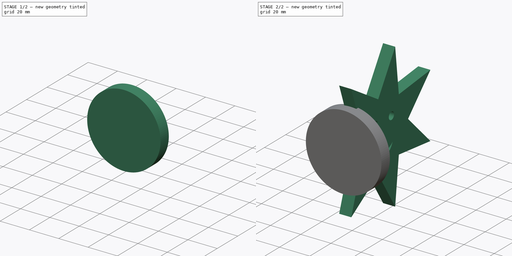
[diagram: build sequence overview — one tinted view per stage of 2, left to right]
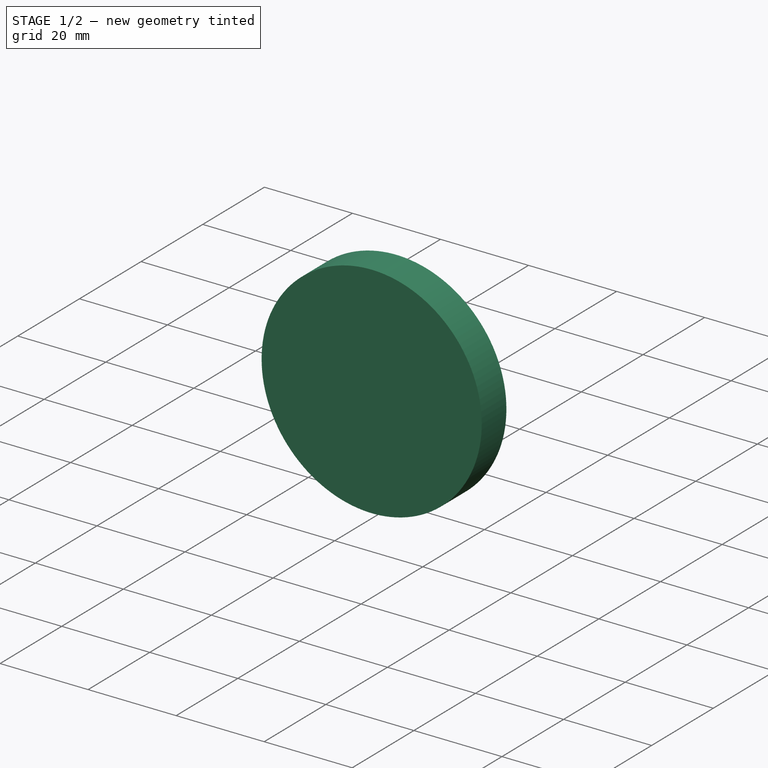
[diagram: stage 1 of 2 — iso view after this stage's code; geometry added in this stage tinted green]
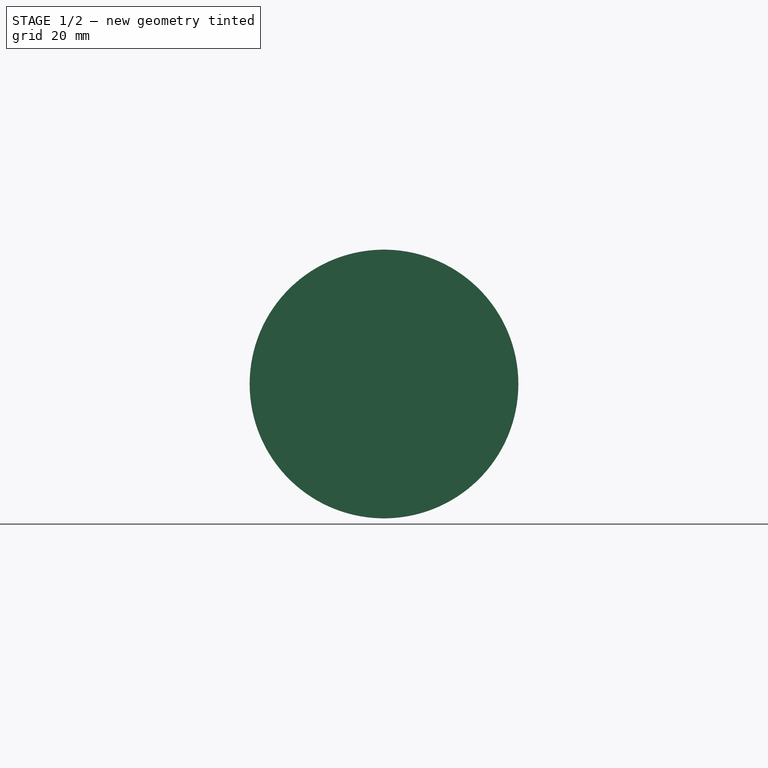
[diagram: stage 1 of 2 — front view after this stage's code; geometry added in this stage tinted green]
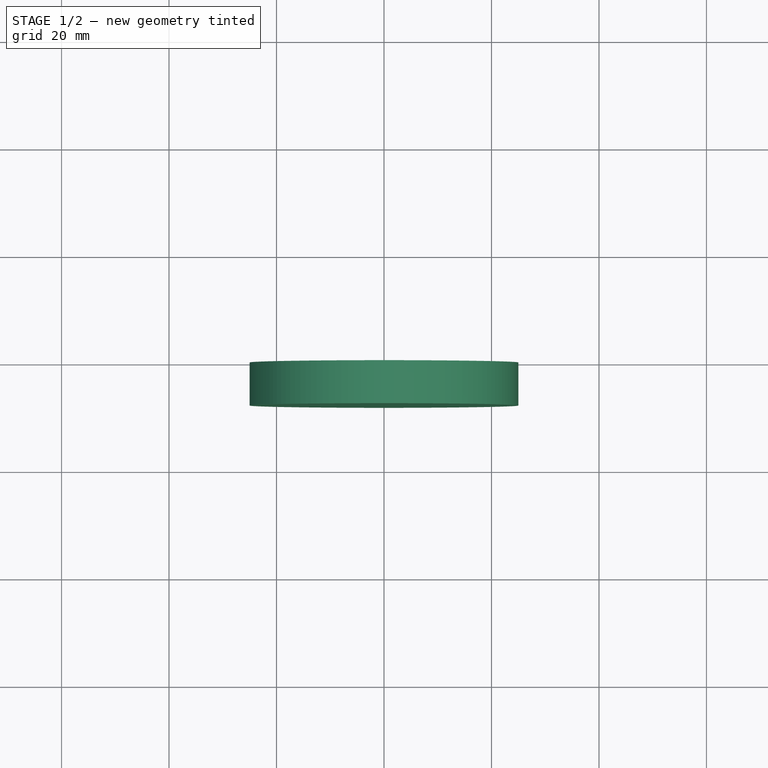
[diagram: stage 1 of 2 — top view after this stage's code; geometry added in this stage tinted green]
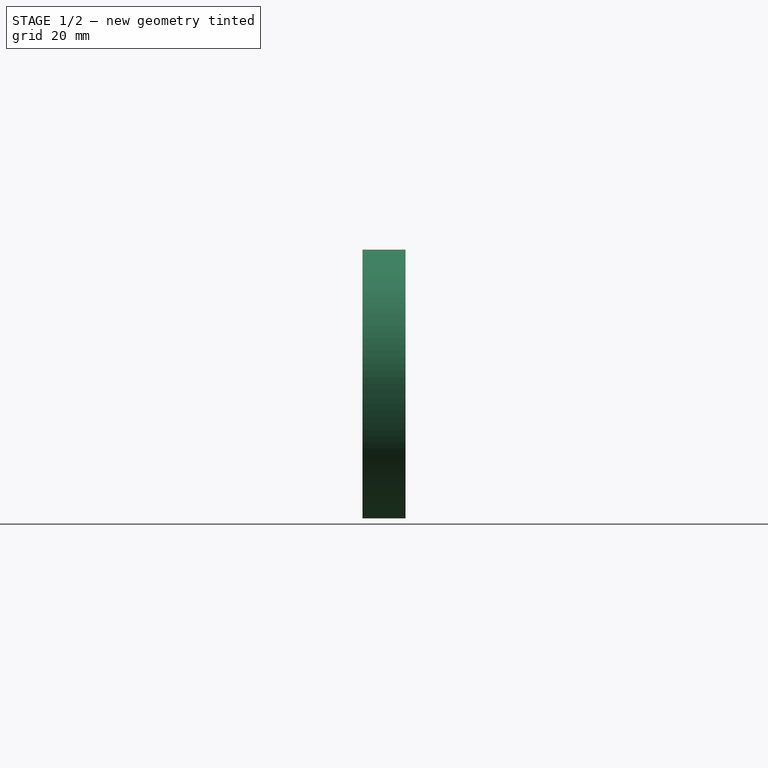
[diagram: stage 1 of 2 — right view after this stage's code; geometry added in this stage tinted green]
FCSTD DOCUMENT  (FreeCAD 0.18R16146 (Git))
Label: kleiderhaken_stern
License: All rights reserved
LicenseURL: http://en.wikipedia.org/wiki/All_rights_reserved
objects: Sketcher::SketchObject×2, PartDesign::Pad×2, PartDesign::Body×1
note: 7 computed .brp shape members not serialized (recipe doc carries the construction recipe); baked Part::Feature solids carry a one-line shape summary decoded from their .brp

FEATURE [Sketcher::SketchObject] Sketch
  MapMode = 5
  Placement = pos=(0,0,0) rot=(1,0,0;1.5708rad)
  Support = -> [XZ_Plane]
  sketch-geometry (1):
    g0: Circle CenterX=0 CenterY=0 CenterZ=0 NormalX=0 NormalY=0 NormalZ=1 AngleXU=0 Radius=25
  constraints (2):
    c: Coincident(g0,g-1)
    c: Diameter(g0) = 50
FEATURE [PartDesign::Pad] Pad
  Length = 8
  Length2 = 100
  Placement = pos=(0,0,0) rot=(1,0,0;1.5708rad)
  Profile = -> Sketch
  Refine = true
  Type = 0
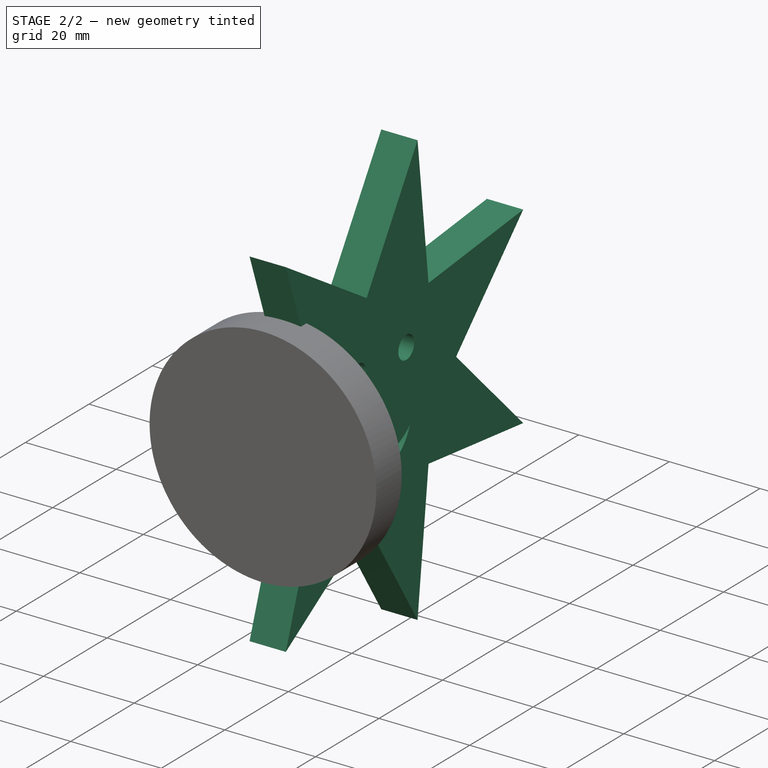
[diagram: stage 2 of 2 — iso view after this stage's code; geometry added in this stage tinted green]
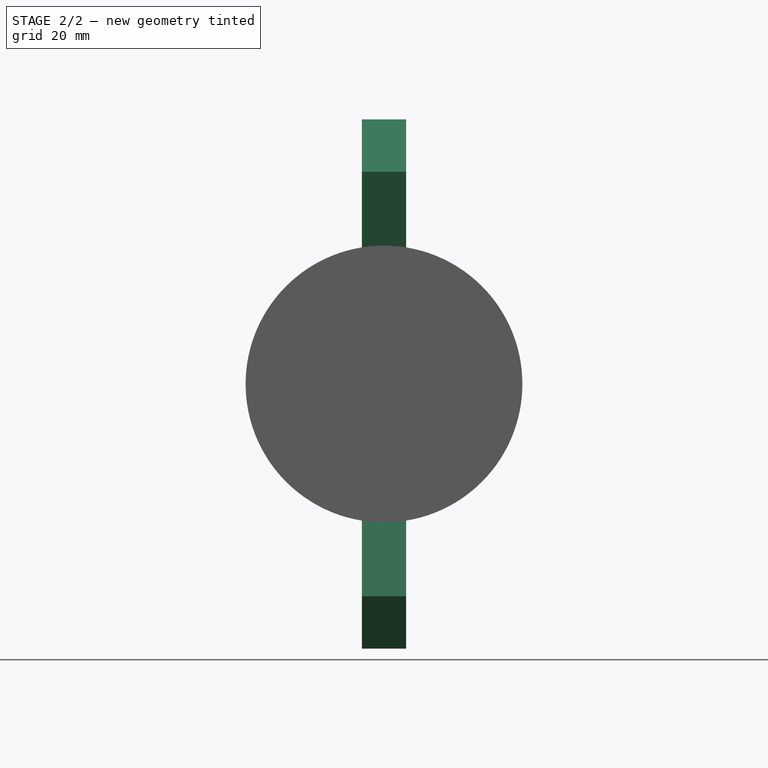
[diagram: stage 2 of 2 — front view after this stage's code; geometry added in this stage tinted green]
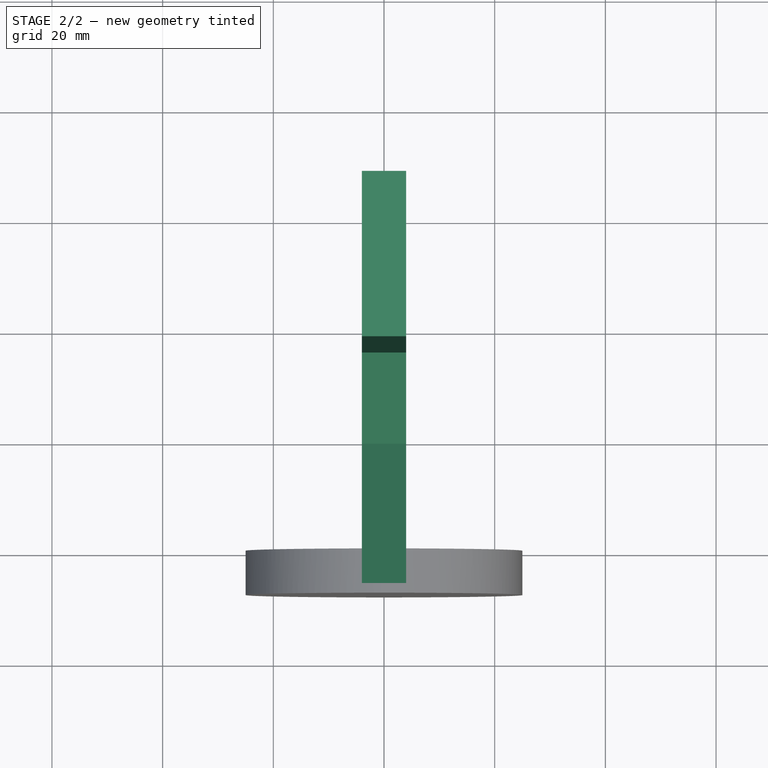
[diagram: stage 2 of 2 — top view after this stage's code; geometry added in this stage tinted green]
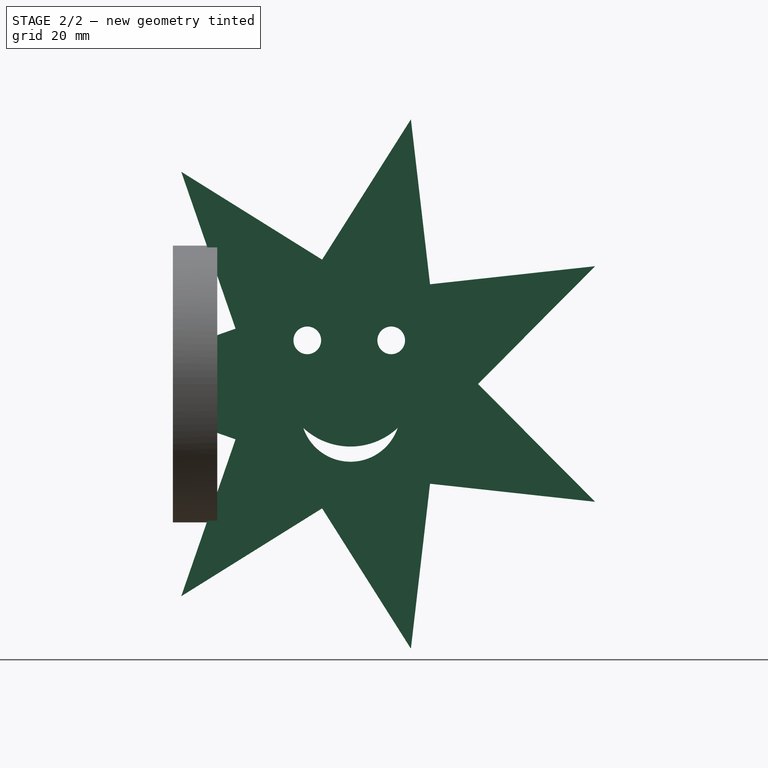
[diagram: stage 2 of 2 — right view after this stage's code; geometry added in this stage tinted green]
FEATURE [Sketcher::SketchObject] Sketch001
  MapMode = 5
  Placement = pos=(0,0,0) rot=(0.57735,0.57735,0.57735;2.0944rad)
  Support = -> [YZ_Plane]
  sketch-geometry (29):
    g0: LineSegment [constr] StartX=47.1295 StartY=-3.6e-15 StartZ=0 EndX=38.4518 EndY=18.0194 EndZ=0
    g1: LineSegment [constr] StartX=38.4518 StartY=18.0194 StartZ=0 EndX=18.9533 EndY=22.4698 EndZ=0
    g2: LineSegment [constr] StartX=18.9533 StartY=22.4698 StartZ=0 EndX=3.31664 EndY=10 EndZ=0
    g3: LineSegment [constr] StartX=3.31664 StartY=10 StartZ=0 EndX=3.31664 EndY=-10 EndZ=0
    g4: LineSegment [constr] StartX=3.31664 StartY=-10 StartZ=0 EndX=18.9533 EndY=-22.4698 EndZ=0
    g5: LineSegment [constr] StartX=18.9533 StartY=-22.4698 StartZ=0 EndX=38.4518 EndY=-18.0194 EndZ=0
    g6: LineSegment [constr] StartX=38.4518 StartY=-18.0194 StartZ=0 EndX=47.1295 EndY=-3.6e-15 EndZ=0
    g7: Circle [constr] CenterX=24.0819 CenterY=0 CenterZ=0 NormalX=0 NormalY=0 NormalZ=1 AngleXU=0 Radius=23.0476
    g8: LineSegment StartX=18.9533 StartY=22.4698 StartZ=0 EndX=34.9964 EndY=47.8197 EndZ=0
    g9: LineSegment StartX=34.9964 StartY=47.8197 StartZ=0 EndX=38.4518 EndY=18.0194 EndZ=0
    g10: LineSegment StartX=38.4518 StartY=18.0194 StartZ=0 EndX=68.2739 EndY=21.2818 EndZ=0
    g11: LineSegment StartX=68.2739 StartY=21.2818 StartZ=0 EndX=47.1295 EndY=-3.6e-15 EndZ=0
    g12: LineSegment StartX=47.1295 StartY=-3.6e-15 StartZ=0 EndX=68.2739 EndY=-21.2818 EndZ=0
    g13: LineSegment StartX=68.2739 StartY=-21.2818 StartZ=0 EndX=38.4518 EndY=-18.0194 EndZ=0
    g14: LineSegment StartX=38.4518 StartY=-18.0194 StartZ=0 EndX=34.9964 EndY=-47.8197 EndZ=0
    g15: LineSegment StartX=34.9964 StartY=-47.8197 StartZ=0 EndX=18.9533 EndY=-22.4698 EndZ=0
    g16: LineSegment StartX=18.9533 StartY=-22.4698 StartZ=0 EndX=-6.5 EndY=-38.3484 EndZ=0
    g17: LineSegment StartX=-6.5 StartY=-38.3484 StartZ=0 EndX=3.31664 EndY=-10 EndZ=0
    g18: LineSegment [constr] StartX=3.31664 StartY=-10 StartZ=0 EndX=-24.9676 EndY=1.8e-15 EndZ=0
    g19: LineSegment [constr] StartX=-24.9676 StartY=1.8e-15 StartZ=0 EndX=3.31664 EndY=10 EndZ=0
    g20: LineSegment StartX=3.31664 StartY=10 StartZ=0 EndX=-6.5 EndY=38.3484 EndZ=0
    g21: LineSegment StartX=-6.5 StartY=38.3484 StartZ=0 EndX=18.9533 EndY=22.4698 EndZ=0
    g22: LineSegment StartX=3.31664 StartY=10 StartZ=0 EndX=0 EndY=8.82739 EndZ=0
    g23: LineSegment StartX=0 StartY=8.82739 StartZ=0 EndX=0 EndY=-8.82739 EndZ=0
    g24: LineSegment StartX=0 StartY=-8.82739 StartZ=0 EndX=3.31664 EndY=-10 EndZ=0
    g25: Circle CenterX=16.2765 CenterY=7.88405 CenterZ=0 NormalX=0 NormalY=0 NormalZ=1 AngleXU=0 Radius=2.5
    g26: Circle CenterX=31.4401 CenterY=7.88405 CenterZ=0 NormalX=0 NormalY=0 NormalZ=1 AngleXU=0 Radius=2.5
    g27: ArcOfCircle CenterX=24.0819 CenterY=-5.04509 CenterZ=0 NormalX=0 NormalY=0 NormalZ=1 AngleXU=0 Radius=9 StartAngle=3.4702 EndAngle=5.95457
    g28: ArcOfCircle CenterX=24.0819 CenterY=1.19839 CenterZ=0 NormalX=0 NormalY=0 NormalZ=1 AngleXU=0 Radius=12.5 StartAngle=3.96261 EndAngle=5.46216
  constraints (71):
    c: Coincident(g0,g1)
    c: Coincident(g1,g2)
    c: Coincident(g2,g3)
    c: Coincident(g3,g4)
    c: Coincident(g4,g5)
    c: Coincident(g5,g6)
    c: Coincident(g6,g0)
    c: Equal(g0, g1-g6) x6
    c: PointOnObject(g0,g7)
    c: PointOnObject(g1,g7)
    c: PointOnObject(g2,g7)
    c: PointOnObject(g3,g7)
    c: PointOnObject(g4,g7)
    c: PointOnObject(g5,g7)
    c: PointOnObject(g6,g7)
    c: Coincident(g1,g8)
    c: Coincident(g8,g9)
    c: Coincident(g9,g0)
    c: Coincident(g9,g10)
    c: Coincident(g10,g11)
    c: Coincident(g11,g0)
    c: Coincident(g11,g12)
    c: Coincident(g12,g13)
    c: Coincident(g13,g5)
    c: Coincident(g13,g14)
    c: Coincident(g14,g15)
    c: Coincident(g15,g4)
    c: Coincident(g15,g16)
    c: Coincident(g16,g17)
    c: Coincident(g17,g3)
    c: Coincident(g17,g18)
    c: Coincident(g19,g2)
    c: Coincident(g19,g20)
    c: Coincident(g20,g21)
    c: Coincident(g21,g8)
    c: Equal(g20,g21)
    c: Equal(g21,g8)
    c: Equal(g8,g9)
    c: Equal(g9,g10)
    c: Equal(g10,g11)
    c: Equal(g11,g12)
    c: Equal(g12,g13)
    c: Equal(g13,g14)
    c: Equal(g14,g15)
    c: Equal(g15,g16)
    c: Equal(g16,g17)
    c: Equal(g17,g18)
    c: Equal(g18,g19)
    c: Coincident(g18,g19)
    c: Vertical(g3)
    c: Coincident(g20,g22)
    c: PointOnObject(g22,g19)
    c: Coincident(g22,g23)
    c: Vertical(g23)
    c: Coincident(g23,g24)
    c: Coincident(g24,g17)
    c: PointOnObject(g23,g18)
    c: Vertical(g23,g-1)
    c: PointOnObject(g7,g-1)
    c: Distance(g12) = 30
    c: Distance(g1) = 20
    c: DistanceX(g16,g-1) = 6.5
    c: Equal(g26,g25)
    c: Vertical(g28,g7)
    c: Diameter(g27) = 18
    c: Coincident(g27,g28)
    c: Coincident(g28,g27)
    c: Diameter(g28) = 25
    c: Horizontal(g26,g25)
    c: Vertical(g7,g27)
    c: Diameter(g26) = 5
FEATURE [PartDesign::Pad] Pad001
  BaseFeature = -> Pad
  Length = 8
  Length2 = 100
  Midplane = true
  Placement = pos=(0,0,0) rot=(1,0,0;1.5708rad)
  Profile = -> Sketch001
  Refine = true
  Type = 0
FEATURE [PartDesign::Body] Body
  Group = -> [Sketch,Pad,Sketch001,Pad001]
  Origin = -> Origin
  Tip = -> Pad001
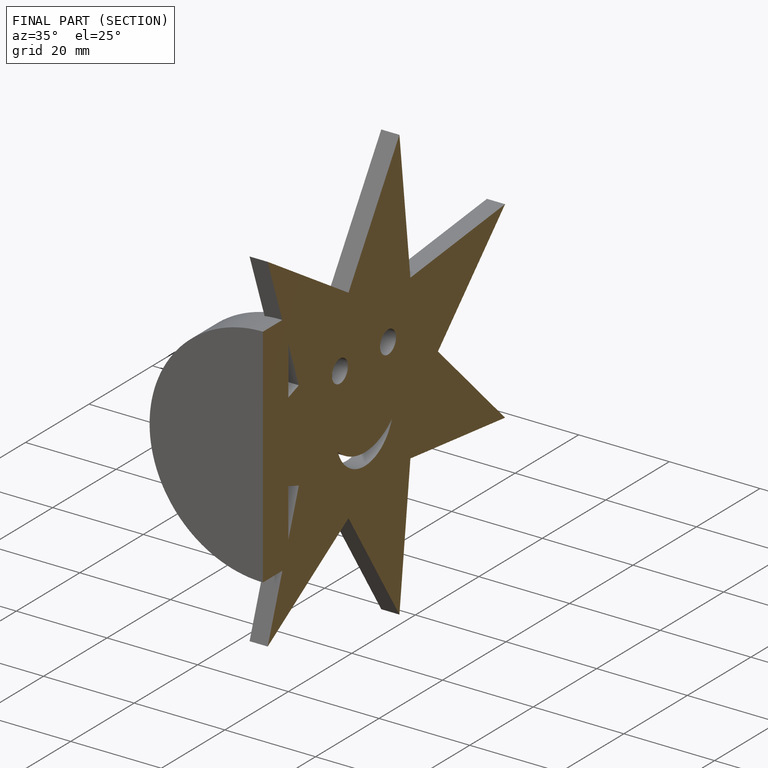
[diagram: finished part — half-section view (interior)]
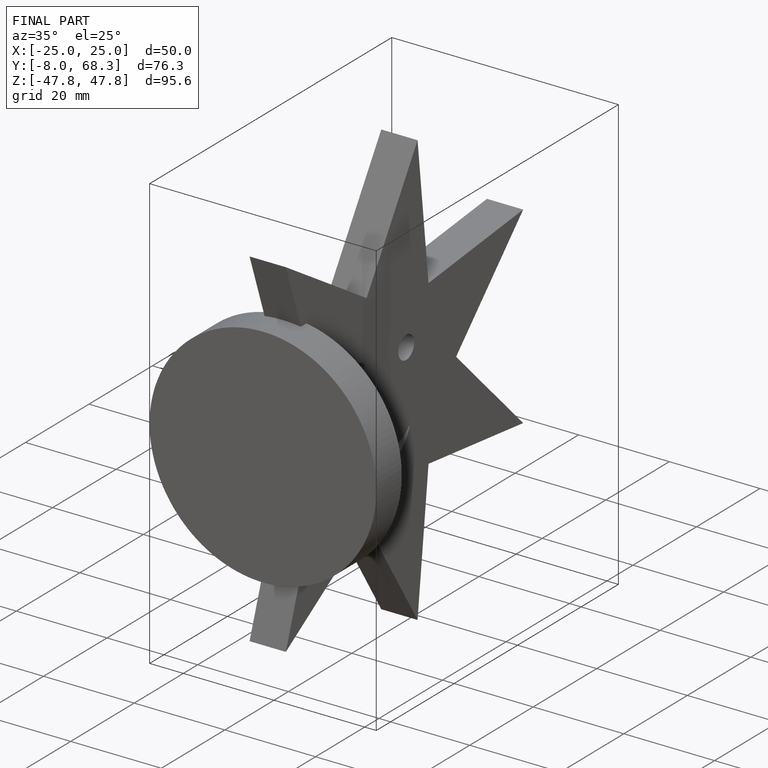
[diagram: finished part — iso view with bounding-box wireframe]
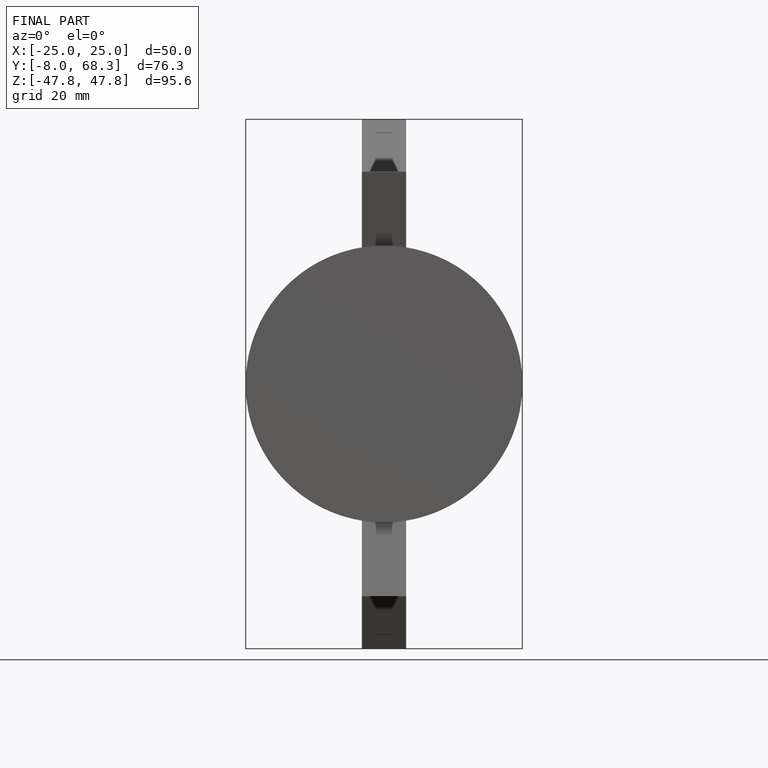
[diagram: finished part — front view with bounding-box wireframe]
